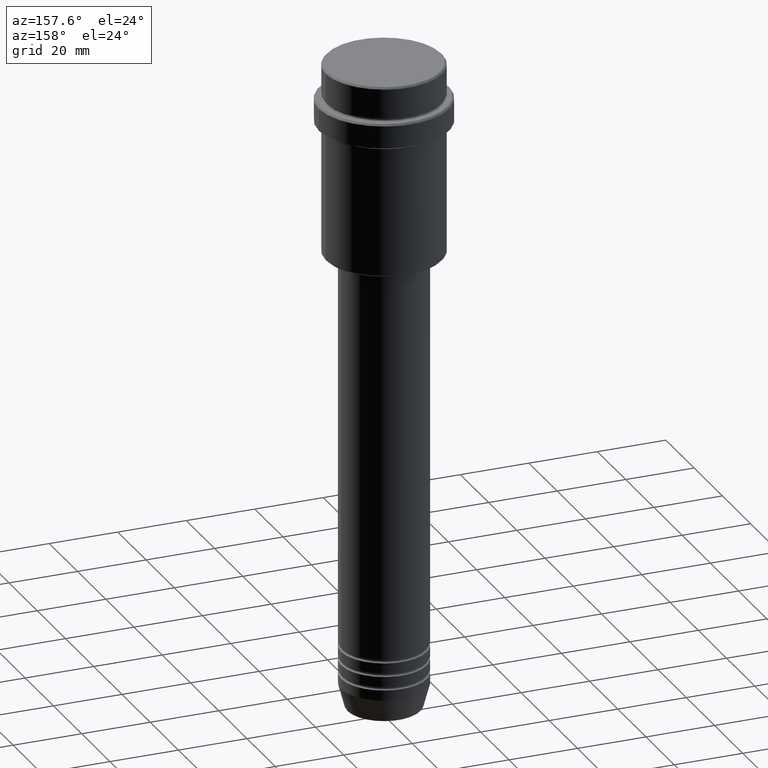
[diagram: clean part render]
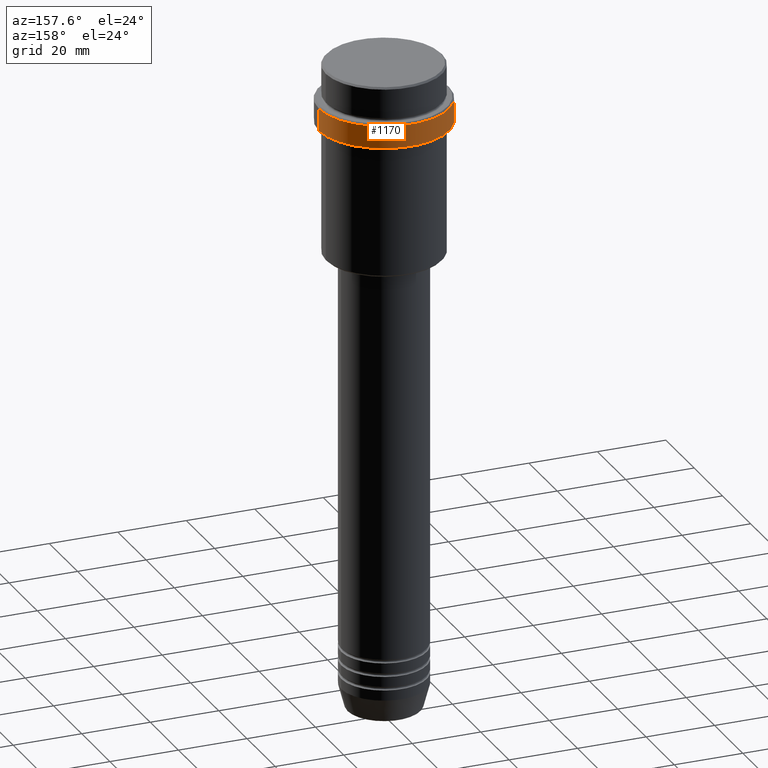
[diagram: same view with one face highlighted and labeled with its STEP entity id]
A machine part, auxiliary view. The second image highlights one B-rep face of the part: STEP entity #1170.
In plain terms, the highlighted cylindrical surface (partial cylindrical patch) has radius 19 mm, axis along (-0, -0, 1).
Its self-contained STEP definition (entity closure, byte-faithful):
#48 = CARTESIAN_POINT ( 'NONE',  ( 18.99999999999997868, 0.000000000000000000, -10.49999999999998934 ) ) ;
#108 = ORIENTED_EDGE ( 'NONE', *, *, #634, .T. ) ;
#125 = ORIENTED_EDGE ( 'NONE', *, *, #1015, .T. ) ;
#269 = ORIENTED_EDGE ( 'NONE', *, *, #997, .F. ) ;
#352 = LINE ( 'NONE', #809, #414 ) ;
#354 = CYLINDRICAL_SURFACE ( 'NONE', #814, 18.99999999999997868 ) ;
#375 = ORIENTED_EDGE ( 'NONE', *, *, #674, .T. ) ;
#405 = VERTEX_POINT ( 'NONE', #1082 ) ;
#414 = VECTOR ( 'NONE', #801, 1000.000000000000000 ) ;
#444 = VERTEX_POINT ( 'NONE', #1217 ) ;
#487 = CARTESIAN_POINT ( 'NONE',  ( 0.000000000000000000, 0.000000000000000000, -17.00000000000000000 ) ) ;
#492 = DIRECTION ( 'NONE',  ( -0.000000000000000000, -0.000000000000000000, 1.000000000000000000 ) ) ;
#533 = EDGE_LOOP ( 'NONE', ( #108, #125, #375, #269 ) ) ;
#546 = CARTESIAN_POINT ( 'NONE',  ( 0.000000000000000000, 0.000000000000000000, -10.49999999999998934 ) ) ;
#584 = CARTESIAN_POINT ( 'NONE',  ( -18.99999999999997868, 2.326828918379968604E-15, 0.000000000000000000 ) ) ;
#593 = CARTESIAN_POINT ( 'NONE',  ( 0.000000000000000000, 0.000000000000000000, 0.000000000000000000 ) ) ;
#629 = AXIS2_PLACEMENT_3D ( 'NONE', #546, #890, #792 ) ;
#630 = VECTOR ( 'NONE', #1231, 1000.000000000000000 ) ;
#634 = EDGE_CURVE ( 'NONE', #444, #893, #693, .T. ) ;
#638 = DIRECTION ( 'NONE',  ( -0.000000000000000000, -0.000000000000000000, 1.000000000000000000 ) ) ;
#674 = EDGE_CURVE ( 'NONE', #405, #995, #1228, .T. ) ;
#693 = CIRCLE ( 'NONE', #941, 18.99999999999997868 ) ;
#792 = DIRECTION ( 'NONE',  ( 1.000000000000000000, 0.000000000000000000, 0.000000000000000000 ) ) ;
#801 = DIRECTION ( 'NONE',  ( -0.000000000000000000, -0.000000000000000000, 1.000000000000000000 ) ) ;
#809 = CARTESIAN_POINT ( 'NONE',  ( 18.99999999999997868, 0.000000000000000000, 0.000000000000000000 ) ) ;
#814 = AXIS2_PLACEMENT_3D ( 'NONE', #593, #492, #1023 ) ;
#818 = CARTESIAN_POINT ( 'NONE',  ( -18.99999999999997868, 2.326828918379968604E-15, -17.00000000000000000 ) ) ;
#890 = DIRECTION ( 'NONE',  ( 0.000000000000000000, 0.000000000000000000, -1.000000000000000000 ) ) ;
#893 = VERTEX_POINT ( 'NONE', #818 ) ;
#910 = LINE ( 'NONE', #584, #630 ) ;
#941 = AXIS2_PLACEMENT_3D ( 'NONE', #487, #638, #1266 ) ;
#995 = VERTEX_POINT ( 'NONE', #48 ) ;
#997 = EDGE_CURVE ( 'NONE', #444, #995, #352, .T. ) ;
#1015 = EDGE_CURVE ( 'NONE', #893, #405, #910, .T. ) ;
#1023 = DIRECTION ( 'NONE',  ( 1.000000000000000000, 0.000000000000000000, 0.000000000000000000 ) ) ;
#1082 = CARTESIAN_POINT ( 'NONE',  ( -18.99999999999997868, 2.326828918379968604E-15, -10.49999999999998934 ) ) ;
#1170 = ADVANCED_FACE ( 'NONE', ( #1351 ), #354, .T. ) ;
#1217 = CARTESIAN_POINT ( 'NONE',  ( 18.99999999999997868, 0.000000000000000000, -17.00000000000000000 ) ) ;
#1228 = CIRCLE ( 'NONE', #629, 18.99999999999997868 ) ;
#1231 = DIRECTION ( 'NONE',  ( -0.000000000000000000, -0.000000000000000000, 1.000000000000000000 ) ) ;
#1266 = DIRECTION ( 'NONE',  ( 1.000000000000000000, 0.000000000000000000, 0.000000000000000000 ) ) ;
#1351 = FACE_OUTER_BOUND ( 'NONE', #533, .T. ) ;